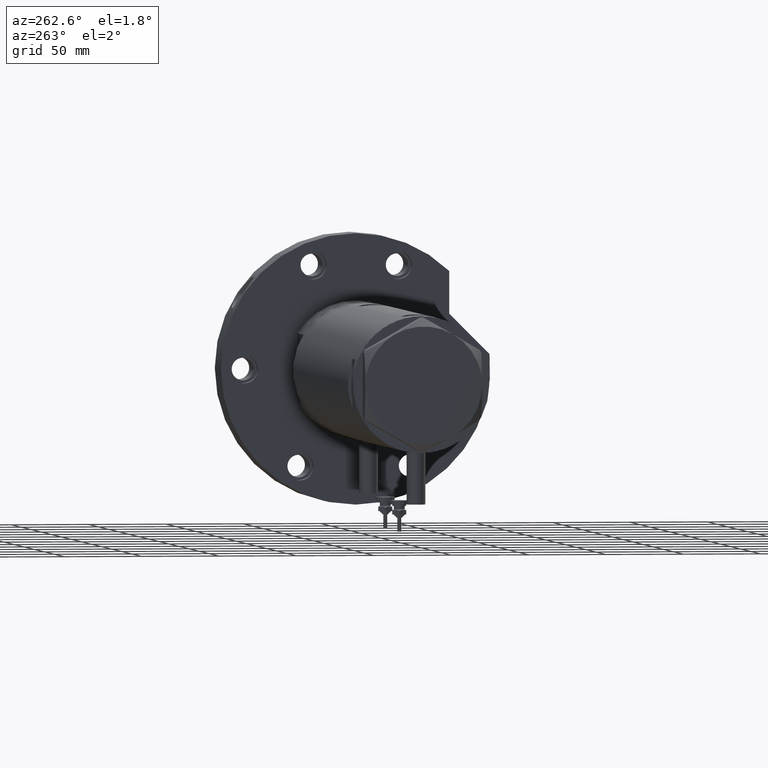
[diagram: clean part render]
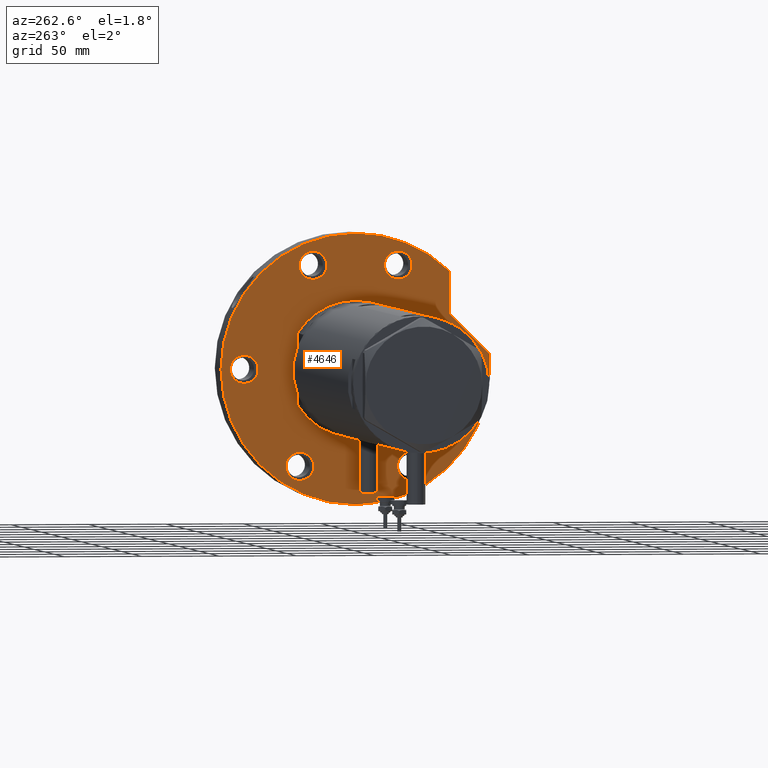
[diagram: same view with one face highlighted and labeled with its STEP entity id]
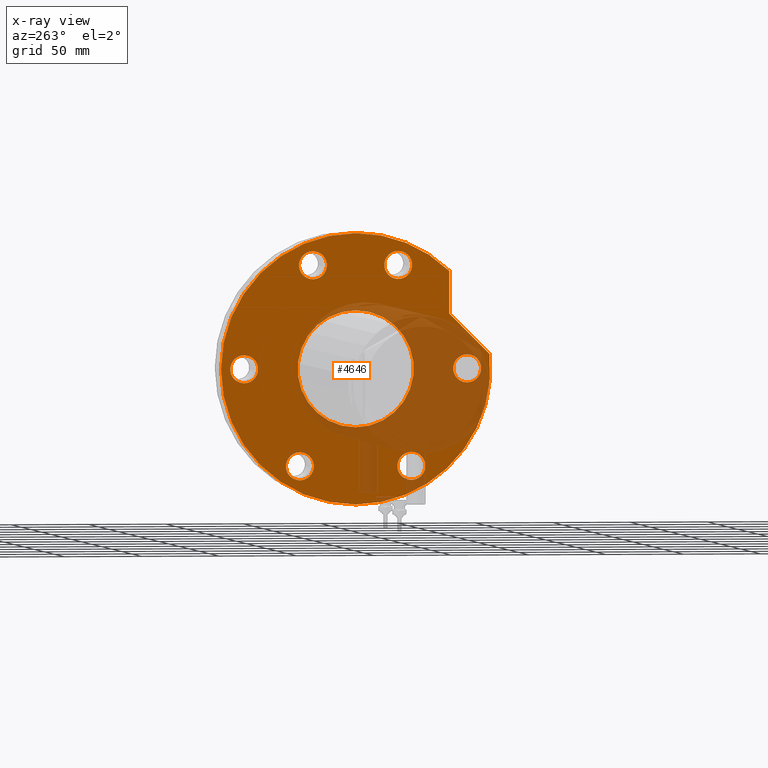
[diagram: x-ray of the same camera — body ghosted, the highlighted face saturated]
A machine part, auxiliary view. The second image highlights one B-rep face of the part: STEP entity #4646.
The next image is the same camera in x-ray: the body ghosted, the highlighted face saturated — about 30% of this face is hidden behind the body in this view.
In plain terms, the highlighted planar face has unit normal (1, 0, -0).
Its self-contained STEP definition (entity closure, byte-faithful):
#15 = CARTESIAN_POINT ( 'NONE',  ( 57.51932634081251905, -27.55320713028675073, 0.000000000000000000 ) ) ;
#20 = FACE_BOUND ( 'NONE', #2769, .T. ) ;
#79 = CARTESIAN_POINT ( 'NONE',  ( 75.51932634081252615, -27.55320713028675073, 0.000000000000000000 ) ) ;
#155 = DIRECTION ( 'NONE',  ( 0.000000000000000000, 0.000000000000000000, -1.000000000000000000 ) ) ;
#199 = DIRECTION ( 'NONE',  ( 0.000000000000000000, 0.000000000000000000, -1.000000000000000000 ) ) ;
#377 = CARTESIAN_POINT ( 'NONE',  ( 66.51932634081252615, 27.55320713028675073, 0.000000000000000000 ) ) ;
#424 = DIRECTION ( 'NONE',  ( 0.000000000000000000, 0.000000000000000000, -1.000000000000000000 ) ) ;
#449 = VERTEX_POINT ( 'NONE', #7028 ) ;
#487 = DIRECTION ( 'NONE',  ( -1.000000000000000000, 0.000000000000000000, 0.000000000000000000 ) ) ;
#493 = EDGE_CURVE ( 'NONE', #2184, #5932, #5299, .T. ) ;
#770 = EDGE_LOOP ( 'NONE', ( #885, #6333 ) ) ;
#792 = AXIS2_PLACEMENT_3D ( 'NONE', #3578, #6519, #6592 ) ;
#824 = CARTESIAN_POINT ( 'NONE',  ( -8.999999999999998224, -72.00000000000000000, 0.000000000000000000 ) ) ;
#836 = ORIENTED_EDGE ( 'NONE', *, *, #7055, .F. ) ;
#861 = EDGE_CURVE ( 'NONE', #449, #4464, #1765, .T. ) ;
#867 = CIRCLE ( 'NONE', #5134, 8.999999999999998224 ) ;
#885 = ORIENTED_EDGE ( 'NONE', *, *, #3740, .F. ) ;
#918 = VERTEX_POINT ( 'NONE', #3630 ) ;
#1025 = CIRCLE ( 'NONE', #1762, 9.000000000000001776 ) ;
#1031 = CIRCLE ( 'NONE', #792, 87.00000000000000000 ) ;
#1034 = DIRECTION ( 'NONE',  ( -1.000000000000000000, 0.000000000000000000, 0.000000000000000000 ) ) ;
#1046 = DIRECTION ( 'NONE',  ( 0.000000000000000000, 0.000000000000000000, 1.000000000000000000 ) ) ;
#1087 = FACE_BOUND ( 'NONE', #1314, .T. ) ;
#1100 = VERTEX_POINT ( 'NONE', #3208 ) ;
#1137 = DIRECTION ( 'NONE',  ( 0.000000000000000000, 0.000000000000000000, -1.000000000000000000 ) ) ;
#1170 = CIRCLE ( 'NONE', #3487, 8.999999999999998224 ) ;
#1175 = EDGE_CURVE ( 'NONE', #918, #6311, #1025, .T. ) ;
#1229 = DIRECTION ( 'NONE',  ( 0.000000000000000000, 0.000000000000000000, -1.000000000000000000 ) ) ;
#1234 = CIRCLE ( 'NONE', #5262, 87.00000000000000000 ) ;
#1262 = VERTEX_POINT ( 'NONE', #5112 ) ;
#1283 = LINE ( 'NONE', #4267, #6921 ) ;
#1286 = AXIS2_PLACEMENT_3D ( 'NONE', #3120, #4870, #2690 ) ;
#1314 = EDGE_LOOP ( 'NONE', ( #7224, #1548 ) ) ;
#1320 = CARTESIAN_POINT ( 'NONE',  ( 0.000000000000000000, 0.000000000000000000, 0.000000000000000000 ) ) ;
#1343 = AXIS2_PLACEMENT_3D ( 'NONE', #6042, #199, #1955 ) ;
#1365 = ORIENTED_EDGE ( 'NONE', *, *, #3809, .F. ) ;
#1368 = DIRECTION ( 'NONE',  ( -1.000000000000000000, 0.000000000000000000, 0.000000000000000000 ) ) ;
#1376 = CARTESIAN_POINT ( 'NONE',  ( 0.000000000000000000, 72.00000000000000000, 0.000000000000000000 ) ) ;
#1499 = VERTEX_POINT ( 'NONE', #79 ) ;
#1531 = AXIS2_PLACEMENT_3D ( 'NONE', #4911, #7236, #5560 ) ;
#1548 = ORIENTED_EDGE ( 'NONE', *, *, #7343, .F. ) ;
#1551 = CARTESIAN_POINT ( 'NONE',  ( -87.00000000000000000, 0.000000000000000000, 0.000000000000000000 ) ) ;
#1599 = EDGE_CURVE ( 'NONE', #6470, #2339, #3572, .T. ) ;
#1618 = CARTESIAN_POINT ( 'NONE',  ( 8.999999999999998224, -72.00000000000000000, 0.000000000000000000 ) ) ;
#1676 = CARTESIAN_POINT ( 'NONE',  ( -71.35382907247941375, -36.00000000000027711, 0.000000000000000000 ) ) ;
#1679 = AXIS2_PLACEMENT_3D ( 'NONE', #7508, #2349, #4030 ) ;
#1757 = AXIS2_PLACEMENT_3D ( 'NONE', #6034, #4812, #7060 ) ;
#1762 = AXIS2_PLACEMENT_3D ( 'NONE', #377, #3282, #487 ) ;
#1765 = LINE ( 'NONE', #2371, #3715 ) ;
#1771 = DIRECTION ( 'NONE',  ( -1.000000000000000000, 0.000000000000000000, 0.000000000000000000 ) ) ;
#1879 = DIRECTION ( 'NONE',  ( 0.7071067811865511255, -0.7071067811865440200, -0.000000000000000000 ) ) ;
#1900 = VERTEX_POINT ( 'NONE', #2395 ) ;
#1955 = DIRECTION ( 'NONE',  ( -1.000000000000000000, 0.000000000000000000, 0.000000000000000000 ) ) ;
#1990 = ORIENTED_EDGE ( 'NONE', *, *, #4871, .T. ) ;
#2005 = EDGE_LOOP ( 'NONE', ( #4011, #2841 ) ) ;
#2024 = AXIS2_PLACEMENT_3D ( 'NONE', #4602, #1046, #7422 ) ;
#2039 = EDGE_CURVE ( 'NONE', #7164, #7254, #6874, .T. ) ;
#2095 = ORIENTED_EDGE ( 'NONE', *, *, #4404, .F. ) ;
#2180 = DIRECTION ( 'NONE',  ( 0.000000000000000000, 0.000000000000000000, -1.000000000000000000 ) ) ;
#2184 = VERTEX_POINT ( 'NONE', #3460 ) ;
#2288 = CARTESIAN_POINT ( 'NONE',  ( 8.999999999999998224, 72.00000000000000000, 0.000000000000000000 ) ) ;
#2306 = ORIENTED_EDGE ( 'NONE', *, *, #5907, .F. ) ;
#2339 = VERTEX_POINT ( 'NONE', #2288 ) ;
#2349 = DIRECTION ( 'NONE',  ( 0.000000000000000000, 0.000000000000000000, 1.000000000000000000 ) ) ;
#2371 = CARTESIAN_POINT ( 'NONE',  ( 35.23236590573035443, 60.47687547247904405, 0.000000000000000000 ) ) ;
#2395 = CARTESIAN_POINT ( 'NONE',  ( 62.54236590573034249, 60.47687547247904405, 0.000000000000000000 ) ) ;
#2538 = ORIENTED_EDGE ( 'NONE', *, *, #4261, .F. ) ;
#2541 = CARTESIAN_POINT ( 'NONE',  ( 66.51932634081252615, 27.55320713028675073, 0.000000000000000000 ) ) ;
#2562 = AXIS2_PLACEMENT_3D ( 'NONE', #2820, #2749, #5725 ) ;
#2627 = CIRCLE ( 'NONE', #3000, 9.000000000000001776 ) ;
#2690 = DIRECTION ( 'NONE',  ( 1.000000000000000000, 0.000000000000000000, 0.000000000000000000 ) ) ;
#2744 = CIRCLE ( 'NONE', #3233, 9.000000000000001776 ) ;
#2749 = DIRECTION ( 'NONE',  ( 0.000000000000000000, 0.000000000000000000, -1.000000000000000000 ) ) ;
#2757 = DIRECTION ( 'NONE',  ( -1.000000000000000000, 0.000000000000000000, 0.000000000000000000 ) ) ;
#2769 = EDGE_LOOP ( 'NONE', ( #2538, #3748 ) ) ;
#2820 = CARTESIAN_POINT ( 'NONE',  ( -62.35382907247965534, 35.99999999999985079, 0.000000000000000000 ) ) ;
#2841 = ORIENTED_EDGE ( 'NONE', *, *, #3896, .T. ) ;
#2849 = FACE_BOUND ( 'NONE', #4407, .T. ) ;
#2887 = FACE_BOUND ( 'NONE', #2005, .T. ) ;
#3000 = AXIS2_PLACEMENT_3D ( 'NONE', #2541, #6020, #4451 ) ;
#3040 = DIRECTION ( 'NONE',  ( 1.000000000000000000, 0.000000000000000000, 0.000000000000000000 ) ) ;
#3061 = EDGE_CURVE ( 'NONE', #6861, #1900, #1031, .T. ) ;
#3098 = AXIS2_PLACEMENT_3D ( 'NONE', #5495, #6141, #6101 ) ;
#3120 = CARTESIAN_POINT ( 'NONE',  ( 0.000000000000000000, 0.000000000000000000, 0.000000000000000000 ) ) ;
#3208 = CARTESIAN_POINT ( 'NONE',  ( -53.35382907247941375, -36.00000000000027711, 0.000000000000000000 ) ) ;
#3233 = AXIS2_PLACEMENT_3D ( 'NONE', #7358, #6788, #6176 ) ;
#3238 = CIRCLE ( 'NONE', #1286, 37.50000000000000711 ) ;
#3281 = EDGE_CURVE ( 'NONE', #1499, #6355, #2744, .T. ) ;
#3282 = DIRECTION ( 'NONE',  ( 0.000000000000000000, 0.000000000000000000, -1.000000000000000000 ) ) ;
#3299 = AXIS2_PLACEMENT_3D ( 'NONE', #6369, #1137, #1368 ) ;
#3318 = ORIENTED_EDGE ( 'NONE', *, *, #861, .T. ) ;
#3331 = CARTESIAN_POINT ( 'NONE',  ( 0.000000000000000000, 72.00000000000000000, 0.000000000000000000 ) ) ;
#3397 = EDGE_LOOP ( 'NONE', ( #4897, #2095 ) ) ;
#3415 = CIRCLE ( 'NONE', #3299, 9.000000000000001776 ) ;
#3460 = CARTESIAN_POINT ( 'NONE',  ( -53.35382907247965534, 35.99999999999985079, 0.000000000000000000 ) ) ;
#3487 = AXIS2_PLACEMENT_3D ( 'NONE', #3331, #424, #2757 ) ;
#3572 = CIRCLE ( 'NONE', #7132, 8.999999999999998224 ) ;
#3578 = CARTESIAN_POINT ( 'NONE',  ( 0.000000000000000000, 0.000000000000000000, 0.000000000000000000 ) ) ;
#3630 = CARTESIAN_POINT ( 'NONE',  ( 75.51932634081252615, 27.55320713028675073, 0.000000000000000000 ) ) ;
#3715 = VECTOR ( 'NONE', #1879, 999.9999999999998863 ) ;
#3740 = EDGE_CURVE ( 'NONE', #6311, #918, #2627, .T. ) ;
#3748 = ORIENTED_EDGE ( 'NONE', *, *, #3281, .F. ) ;
#3789 = EDGE_CURVE ( 'NONE', #1262, #5727, #3238, .T. ) ;
#3809 = EDGE_CURVE ( 'NONE', #449, #6755, #5685, .T. ) ;
#3896 = EDGE_CURVE ( 'NONE', #5727, #1262, #4954, .T. ) ;
#3897 = ORIENTED_EDGE ( 'NONE', *, *, #6269, .F. ) ;
#4011 = ORIENTED_EDGE ( 'NONE', *, *, #3789, .T. ) ;
#4030 = DIRECTION ( 'NONE',  ( 1.000000000000000000, 0.000000000000000000, -0.000000000000000000 ) ) ;
#4098 = CIRCLE ( 'NONE', #4224, 9.000000000000001776 ) ;
#4174 = CARTESIAN_POINT ( 'NONE',  ( 0.000000000000000000, -72.00000000000000000, 0.000000000000000000 ) ) ;
#4224 = AXIS2_PLACEMENT_3D ( 'NONE', #6914, #2180, #1034 ) ;
#4261 = EDGE_CURVE ( 'NONE', #6355, #1499, #4098, .T. ) ;
#4267 = CARTESIAN_POINT ( 'NONE',  ( 35.23236590573035443, 60.47687547247904405, 0.000000000000000000 ) ) ;
#4404 = EDGE_CURVE ( 'NONE', #2339, #6470, #1170, .T. ) ;
#4407 = EDGE_LOOP ( 'NONE', ( #2306, #3897 ) ) ;
#4451 = DIRECTION ( 'NONE',  ( -1.000000000000000000, 0.000000000000000000, 0.000000000000000000 ) ) ;
#4464 = VERTEX_POINT ( 'NONE', #5234 ) ;
#4602 = CARTESIAN_POINT ( 'NONE',  ( 0.000000000000000000, 0.000000000000000000, 0.000000000000000000 ) ) ;
#4646 = ADVANCED_FACE ( 'NONE', ( #5504, #5717, #20, #1087, #2849, #5104, #2887, #5257 ), #5140, .F. ) ;
#4812 = DIRECTION ( 'NONE',  ( 0.000000000000000000, 0.000000000000000000, -1.000000000000000000 ) ) ;
#4870 = DIRECTION ( 'NONE',  ( 0.000000000000000000, 0.000000000000000000, 1.000000000000000000 ) ) ;
#4871 = EDGE_CURVE ( 'NONE', #4464, #1900, #1283, .T. ) ;
#4897 = ORIENTED_EDGE ( 'NONE', *, *, #1599, .F. ) ;
#4911 = CARTESIAN_POINT ( 'NONE',  ( 0.000000000000000000, 0.000000000000000000, 0.000000000000000000 ) ) ;
#4954 = CIRCLE ( 'NONE', #2024, 37.50000000000000711 ) ;
#5002 = CARTESIAN_POINT ( 'NONE',  ( -71.35382907247965534, 35.99999999999985079, 0.000000000000000000 ) ) ;
#5003 = ORIENTED_EDGE ( 'NONE', *, *, #6047, .F. ) ;
#5104 = FACE_BOUND ( 'NONE', #5848, .T. ) ;
#5112 = CARTESIAN_POINT ( 'NONE',  ( 37.50000000000000711, 0.000000000000000000, 0.000000000000000000 ) ) ;
#5134 = AXIS2_PLACEMENT_3D ( 'NONE', #4174, #1229, #1771 ) ;
#5140 = PLANE ( 'NONE',  #1679 ) ;
#5234 = CARTESIAN_POINT ( 'NONE',  ( 35.23236590573035443, 60.47687547247904405, 0.000000000000000000 ) ) ;
#5257 = FACE_OUTER_BOUND ( 'NONE', #7264, .T. ) ;
#5262 = AXIS2_PLACEMENT_3D ( 'NONE', #1320, #5980, #5409 ) ;
#5299 = CIRCLE ( 'NONE', #1757, 9.000000000000001776 ) ;
#5409 = DIRECTION ( 'NONE',  ( 1.000000000000000000, 0.000000000000000000, 0.000000000000000000 ) ) ;
#5422 = CARTESIAN_POINT ( 'NONE',  ( 57.51932634081251905, 27.55320713028675073, 0.000000000000000000 ) ) ;
#5495 = CARTESIAN_POINT ( 'NONE',  ( 0.000000000000000000, -72.00000000000000000, 0.000000000000000000 ) ) ;
#5504 = FACE_BOUND ( 'NONE', #3397, .T. ) ;
#5560 = DIRECTION ( 'NONE',  ( 1.000000000000000000, 0.000000000000000000, 0.000000000000000000 ) ) ;
#5685 = CIRCLE ( 'NONE', #1531, 87.00000000000000000 ) ;
#5717 = FACE_BOUND ( 'NONE', #770, .T. ) ;
#5725 = DIRECTION ( 'NONE',  ( -1.000000000000000000, 0.000000000000000000, 0.000000000000000000 ) ) ;
#5727 = VERTEX_POINT ( 'NONE', #7105 ) ;
#5848 = EDGE_LOOP ( 'NONE', ( #5003, #6653 ) ) ;
#5855 = CIRCLE ( 'NONE', #2562, 9.000000000000001776 ) ;
#5907 = EDGE_CURVE ( 'NONE', #6091, #1100, #7070, .T. ) ;
#5932 = VERTEX_POINT ( 'NONE', #5002 ) ;
#5980 = DIRECTION ( 'NONE',  ( 0.000000000000000000, 0.000000000000000000, 1.000000000000000000 ) ) ;
#6020 = DIRECTION ( 'NONE',  ( 0.000000000000000000, 0.000000000000000000, -1.000000000000000000 ) ) ;
#6034 = CARTESIAN_POINT ( 'NONE',  ( -62.35382907247965534, 35.99999999999985079, 0.000000000000000000 ) ) ;
#6042 = CARTESIAN_POINT ( 'NONE',  ( -62.35382907247942086, -36.00000000000027711, 0.000000000000000000 ) ) ;
#6047 = EDGE_CURVE ( 'NONE', #5932, #2184, #5855, .T. ) ;
#6091 = VERTEX_POINT ( 'NONE', #1676 ) ;
#6101 = DIRECTION ( 'NONE',  ( -1.000000000000000000, 0.000000000000000000, 0.000000000000000000 ) ) ;
#6141 = DIRECTION ( 'NONE',  ( 0.000000000000000000, 0.000000000000000000, -1.000000000000000000 ) ) ;
#6176 = DIRECTION ( 'NONE',  ( -1.000000000000000000, 0.000000000000000000, 0.000000000000000000 ) ) ;
#6253 = CARTESIAN_POINT ( 'NONE',  ( 87.00000000000000000, 1.065442715258197209E-14, 0.000000000000000000 ) ) ;
#6269 = EDGE_CURVE ( 'NONE', #1100, #6091, #3415, .T. ) ;
#6276 = ORIENTED_EDGE ( 'NONE', *, *, #3061, .F. ) ;
#6311 = VERTEX_POINT ( 'NONE', #5422 ) ;
#6333 = ORIENTED_EDGE ( 'NONE', *, *, #1175, .F. ) ;
#6355 = VERTEX_POINT ( 'NONE', #15 ) ;
#6369 = CARTESIAN_POINT ( 'NONE',  ( -62.35382907247942086, -36.00000000000027711, 0.000000000000000000 ) ) ;
#6470 = VERTEX_POINT ( 'NONE', #6723 ) ;
#6519 = DIRECTION ( 'NONE',  ( 0.000000000000000000, 0.000000000000000000, 1.000000000000000000 ) ) ;
#6592 = DIRECTION ( 'NONE',  ( 1.000000000000000000, 0.000000000000000000, 0.000000000000000000 ) ) ;
#6653 = ORIENTED_EDGE ( 'NONE', *, *, #493, .F. ) ;
#6723 = CARTESIAN_POINT ( 'NONE',  ( -8.999999999999998224, 72.00000000000000000, 0.000000000000000000 ) ) ;
#6755 = VERTEX_POINT ( 'NONE', #1551 ) ;
#6788 = DIRECTION ( 'NONE',  ( 0.000000000000000000, 0.000000000000000000, -1.000000000000000000 ) ) ;
#6861 = VERTEX_POINT ( 'NONE', #6253 ) ;
#6874 = CIRCLE ( 'NONE', #3098, 8.999999999999998224 ) ;
#6914 = CARTESIAN_POINT ( 'NONE',  ( 66.51932634081252615, -27.55320713028675073, 0.000000000000000000 ) ) ;
#6921 = VECTOR ( 'NONE', #3040, 1000.000000000000000 ) ;
#7028 = CARTESIAN_POINT ( 'NONE',  ( 9.196694222441541555, 86.51254715576759224, 0.000000000000000000 ) ) ;
#7055 = EDGE_CURVE ( 'NONE', #6755, #6861, #1234, .T. ) ;
#7060 = DIRECTION ( 'NONE',  ( -1.000000000000000000, 0.000000000000000000, 0.000000000000000000 ) ) ;
#7070 = CIRCLE ( 'NONE', #1343, 9.000000000000001776 ) ;
#7105 = CARTESIAN_POINT ( 'NONE',  ( -37.50000000000000711, 4.592425496802575156E-15, 0.000000000000000000 ) ) ;
#7132 = AXIS2_PLACEMENT_3D ( 'NONE', #1376, #155, #7218 ) ;
#7164 = VERTEX_POINT ( 'NONE', #824 ) ;
#7218 = DIRECTION ( 'NONE',  ( -1.000000000000000000, 0.000000000000000000, 0.000000000000000000 ) ) ;
#7224 = ORIENTED_EDGE ( 'NONE', *, *, #2039, .F. ) ;
#7236 = DIRECTION ( 'NONE',  ( 0.000000000000000000, 0.000000000000000000, 1.000000000000000000 ) ) ;
#7254 = VERTEX_POINT ( 'NONE', #1618 ) ;
#7264 = EDGE_LOOP ( 'NONE', ( #3318, #1990, #6276, #836, #1365 ) ) ;
#7343 = EDGE_CURVE ( 'NONE', #7254, #7164, #867, .T. ) ;
#7358 = CARTESIAN_POINT ( 'NONE',  ( 66.51932634081252615, -27.55320713028675073, 0.000000000000000000 ) ) ;
#7422 = DIRECTION ( 'NONE',  ( 1.000000000000000000, 0.000000000000000000, 0.000000000000000000 ) ) ;
#7508 = CARTESIAN_POINT ( 'NONE',  ( 0.000000000000000000, 0.000000000000000000, 0.000000000000000000 ) ) ;